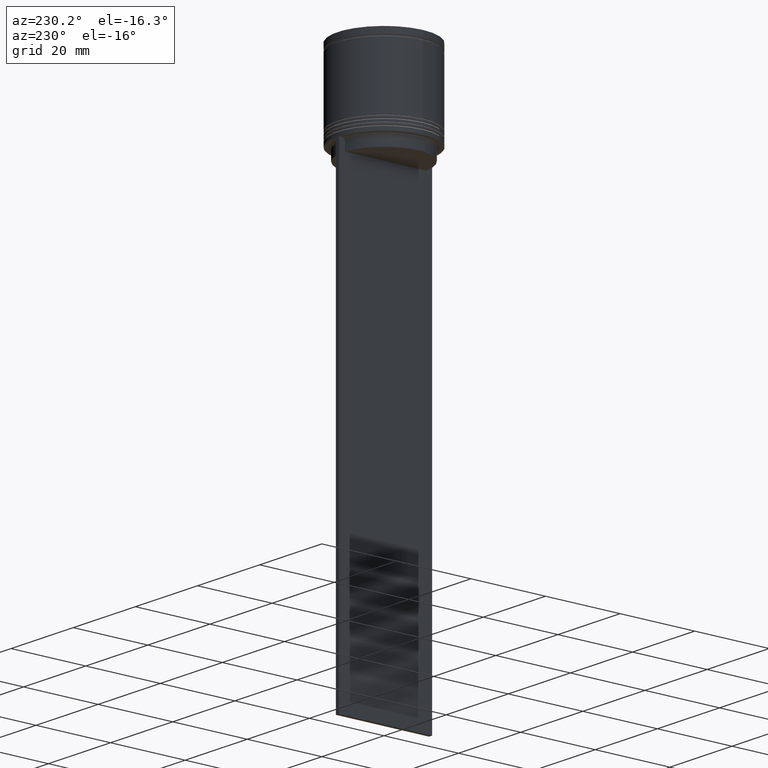
[diagram: clean part render]
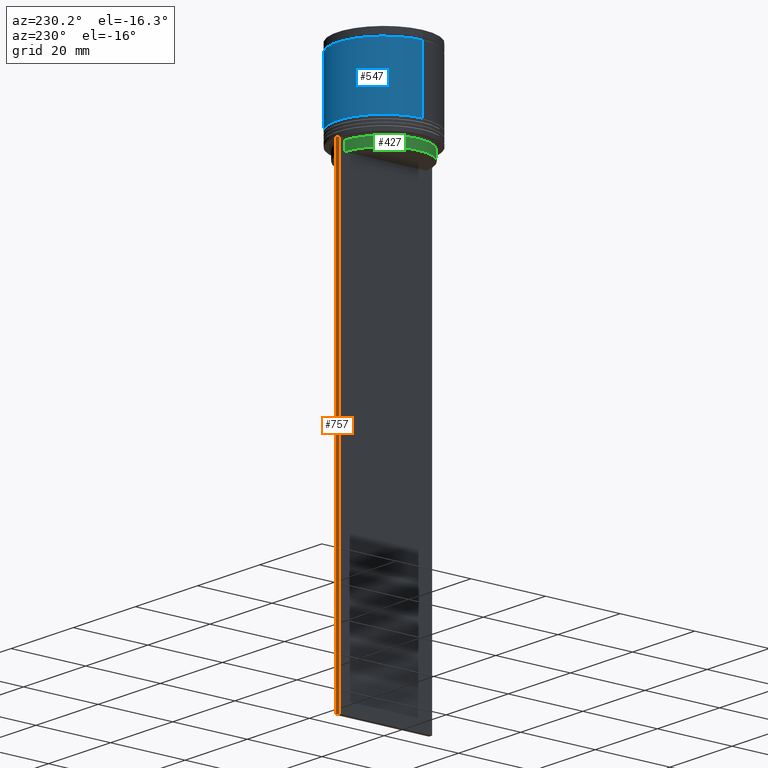
[diagram: same view with three faces highlighted in distinct colors, each labeled with its STEP entity id]
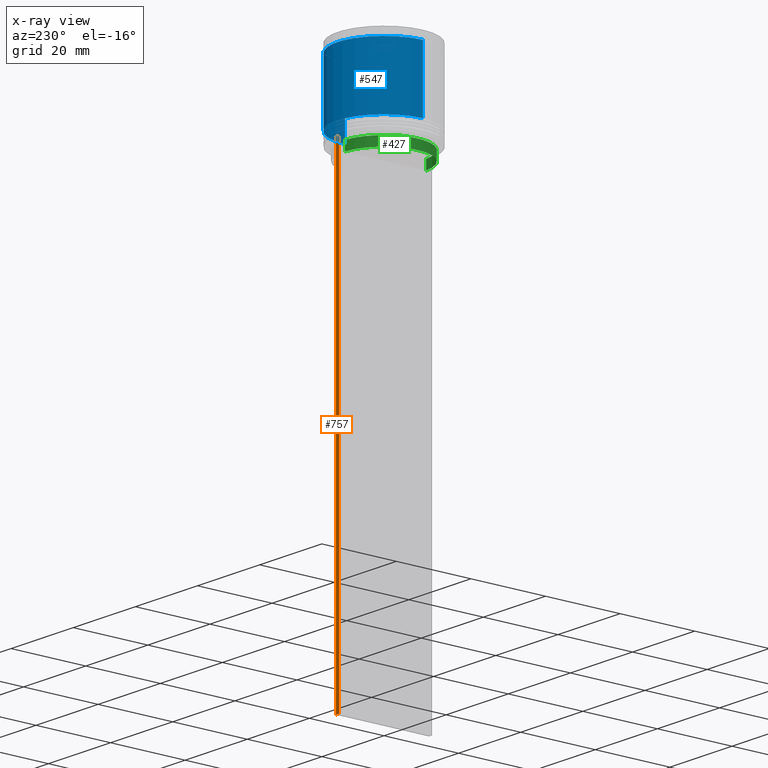
[diagram: x-ray of the same camera — body ghosted, the three highlighted faces saturated]
A machine part, auxiliary view with three faces highlighted in distinct colors.
The next image is the same camera in x-ray (body ghosted, the three faces saturated) — at least one of them is partly hidden behind the body in this view.
Their STEP definitions:

[orange] entity #757 — the highlighted planar face has unit normal (0, -1, -0).
#13 = LINE ( 'NONE', #1763, #637 ) ;
#62 = FACE_OUTER_BOUND ( 'NONE', #1303, .T. ) ;
#249 = CARTESIAN_POINT ( 'NONE',  ( -0.5000000000000000000, 12.50000000000000711, -22.50000000000000000 ) ) ;
#272 = ORIENTED_EDGE ( 'NONE', *, *, #1865, .F. ) ;
#299 = EDGE_CURVE ( 'NONE', #1597, #487, #13, .T. ) ;
#460 = VERTEX_POINT ( 'NONE', #249 ) ;
#486 = CARTESIAN_POINT ( 'NONE',  ( 0.5000000000000000000, 12.50000000000000711, -146.5000000000000000 ) ) ;
#487 = VERTEX_POINT ( 'NONE', #572 ) ;
#525 = CARTESIAN_POINT ( 'NONE',  ( -0.5000000000000000000, 12.50000000000000711, 2.519992006393609874 ) ) ;
#538 = VERTEX_POINT ( 'NONE', #2061 ) ;
#572 = CARTESIAN_POINT ( 'NONE',  ( 0.5000000000000000000, 12.50000000000000711, -146.5000000000000000 ) ) ;
#637 = VECTOR ( 'NONE', #1462, 1000.000000000000000 ) ;
#644 = VECTOR ( 'NONE', #1942, 1000.000000000000000 ) ;
#721 = PLANE ( 'NONE',  #1336 ) ;
#757 = ADVANCED_FACE ( 'NONE', ( #62 ), #721, .F. ) ;
#848 = LINE ( 'NONE', #525, #1980 ) ;
#987 = ORIENTED_EDGE ( 'NONE', *, *, #996, .T. ) ;
#990 = CARTESIAN_POINT ( 'NONE',  ( 0.5000000000000000000, 12.50000000000000711, -22.50000000000000000 ) ) ;
#996 = EDGE_CURVE ( 'NONE', #487, #538, #1365, .T. ) ;
#999 = EDGE_CURVE ( 'NONE', #460, #1597, #1298, .T. ) ;
#1024 = CARTESIAN_POINT ( 'NONE',  ( 0.5000000000000000000, 12.50000000000000711, -22.50000000000000000 ) ) ;
#1111 = DIRECTION ( 'NONE',  ( -1.000000000000000000, 0.000000000000000000, 0.000000000000000000 ) ) ;
#1298 = LINE ( 'NONE', #990, #644 ) ;
#1303 = EDGE_LOOP ( 'NONE', ( #272, #1437, #1873, #987 ) ) ;
#1336 = AXIS2_PLACEMENT_3D ( 'NONE', #1359, #1793, #1488 ) ;
#1359 = CARTESIAN_POINT ( 'NONE',  ( 0.5000000000000000000, 12.50000000000000711, 2.519992006393609874 ) ) ;
#1365 = LINE ( 'NONE', #486, #1782 ) ;
#1437 = ORIENTED_EDGE ( 'NONE', *, *, #999, .T. ) ;
#1462 = DIRECTION ( 'NONE',  ( 0.000000000000000000, 0.000000000000000000, -1.000000000000000000 ) ) ;
#1488 = DIRECTION ( 'NONE',  ( 0.000000000000000000, 0.000000000000000000, -1.000000000000000000 ) ) ;
#1597 = VERTEX_POINT ( 'NONE', #1024 ) ;
#1623 = DIRECTION ( 'NONE',  ( 0.000000000000000000, 0.000000000000000000, -1.000000000000000000 ) ) ;
#1763 = CARTESIAN_POINT ( 'NONE',  ( 0.5000000000000000000, 12.50000000000000711, 2.519992006393609874 ) ) ;
#1782 = VECTOR ( 'NONE', #1111, 1000.000000000000000 ) ;
#1793 = DIRECTION ( 'NONE',  ( 0.000000000000000000, -1.000000000000000000, -0.000000000000000000 ) ) ;
#1865 = EDGE_CURVE ( 'NONE', #460, #538, #848, .T. ) ;
#1873 = ORIENTED_EDGE ( 'NONE', *, *, #299, .T. ) ;
#1942 = DIRECTION ( 'NONE',  ( 1.000000000000000000, 0.000000000000000000, 0.000000000000000000 ) ) ;
#1980 = VECTOR ( 'NONE', #1623, 1000.000000000000000 ) ;
#2061 = CARTESIAN_POINT ( 'NONE',  ( -0.5000000000000000000, 12.50000000000000711, -146.5000000000000000 ) ) ;

[blue] entity #547 — the highlighted cylindrical surface (partial cylindrical patch) has radius 12.5 mm, axis along (-0, -0, 1).
#39 = FACE_OUTER_BOUND ( 'NONE', #1017, .T. ) ;
#73 = DIRECTION ( 'NONE',  ( 1.000000000000000000, 0.000000000000000000, 0.000000000000000000 ) ) ;
#174 = ORIENTED_EDGE ( 'NONE', *, *, #1896, .T. ) ;
#187 = AXIS2_PLACEMENT_3D ( 'NONE', #1967, #672, #73 ) ;
#214 = CARTESIAN_POINT ( 'NONE',  ( 0.000000000000000000, 0.000000000000000000, -2.199999999999994404 ) ) ;
#283 = VECTOR ( 'NONE', #1565, 1000.000000000000000 ) ;
#300 = DIRECTION ( 'NONE',  ( 1.000000000000000000, 0.000000000000000000, 0.000000000000000000 ) ) ;
#360 = CARTESIAN_POINT ( 'NONE',  ( 12.49999999999999645, 0.000000000000000000, -2.199999999999994404 ) ) ;
#415 = ORIENTED_EDGE ( 'NONE', *, *, #1470, .F. ) ;
#424 = CARTESIAN_POINT ( 'NONE',  ( -12.49999999999999645, 1.530808498934191324E-15, -2.199999999999994404 ) ) ;
#466 = CARTESIAN_POINT ( 'NONE',  ( 0.000000000000000000, 0.000000000000000000, 0.000000000000000000 ) ) ;
#531 = CARTESIAN_POINT ( 'NONE',  ( 12.50000000000000178, 0.000000000000000000, -19.00000000000000000 ) ) ;
#547 = ADVANCED_FACE ( 'NONE', ( #39 ), #664, .T. ) ;
#619 = CARTESIAN_POINT ( 'NONE',  ( -12.50000000000000000, 1.530808498934191521E-15, 0.000000000000000000 ) ) ;
#646 = CARTESIAN_POINT ( 'NONE',  ( -12.50000000000000355, 1.530808498934191916E-15, -19.00000000000000000 ) ) ;
#664 = CYLINDRICAL_SURFACE ( 'NONE', #1510, 12.50000000000000000 ) ;
#672 = DIRECTION ( 'NONE',  ( -0.000000000000000000, -0.000000000000000000, 1.000000000000000000 ) ) ;
#753 = LINE ( 'NONE', #619, #283 ) ;
#758 = EDGE_CURVE ( 'NONE', #1888, #1458, #936, .T. ) ;
#772 = VERTEX_POINT ( 'NONE', #531 ) ;
#841 = DIRECTION ( 'NONE',  ( 1.000000000000000000, 0.000000000000000000, 0.000000000000000000 ) ) ;
#936 = CIRCLE ( 'NONE', #970, 12.49999999999999645 ) ;
#970 = AXIS2_PLACEMENT_3D ( 'NONE', #214, #1976, #841 ) ;
#1017 = EDGE_LOOP ( 'NONE', ( #174, #1575, #1333, #415 ) ) ;
#1067 = CARTESIAN_POINT ( 'NONE',  ( 12.50000000000000000, 0.000000000000000000, 0.000000000000000000 ) ) ;
#1098 = DIRECTION ( 'NONE',  ( -0.000000000000000000, -0.000000000000000000, 1.000000000000000000 ) ) ;
#1229 = LINE ( 'NONE', #1067, #1747 ) ;
#1231 = VERTEX_POINT ( 'NONE', #646 ) ;
#1333 = ORIENTED_EDGE ( 'NONE', *, *, #758, .F. ) ;
#1458 = VERTEX_POINT ( 'NONE', #424 ) ;
#1470 = EDGE_CURVE ( 'NONE', #772, #1888, #1229, .T. ) ;
#1495 = EDGE_CURVE ( 'NONE', #1231, #1458, #753, .T. ) ;
#1510 = AXIS2_PLACEMENT_3D ( 'NONE', #466, #1098, #300 ) ;
#1565 = DIRECTION ( 'NONE',  ( -0.000000000000000000, -0.000000000000000000, 1.000000000000000000 ) ) ;
#1575 = ORIENTED_EDGE ( 'NONE', *, *, #1495, .T. ) ;
#1747 = VECTOR ( 'NONE', #2030, 1000.000000000000000 ) ;
#1832 = CIRCLE ( 'NONE', #187, 12.50000000000000178 ) ;
#1888 = VERTEX_POINT ( 'NONE', #360 ) ;
#1896 = EDGE_CURVE ( 'NONE', #772, #1231, #1832, .T. ) ;
#1967 = CARTESIAN_POINT ( 'NONE',  ( 0.000000000000000000, 0.000000000000000000, -19.00000000000000000 ) ) ;
#1976 = DIRECTION ( 'NONE',  ( -0.000000000000000000, -0.000000000000000000, 1.000000000000000000 ) ) ;
#2030 = DIRECTION ( 'NONE',  ( -0.000000000000000000, -0.000000000000000000, 1.000000000000000000 ) ) ;

[green] entity #427 — the highlighted cylindrical surface (partial cylindrical patch) has radius 10.9 mm, axis along (-0, -0, 1).
#100 = CARTESIAN_POINT ( 'NONE',  ( -0.5000000000000000000, -10.88852607105297032, 0.000000000000000000 ) ) ;
#113 = VERTEX_POINT ( 'NONE', #254 ) ;
#135 = CARTESIAN_POINT ( 'NONE',  ( -0.5000000000000000000, 10.88852607105297032, 0.000000000000000000 ) ) ;
#154 = DIRECTION ( 'NONE',  ( 1.000000000000000000, 0.000000000000000000, 0.000000000000000000 ) ) ;
#175 = CARTESIAN_POINT ( 'NONE',  ( -0.5000000000000000000, -10.88852607105296855, -25.50000000000000000 ) ) ;
#240 = VECTOR ( 'NONE', #577, 1000.000000000000000 ) ;
#254 = CARTESIAN_POINT ( 'NONE',  ( -0.5000000000000000000, 10.88852607105297032, -22.99999999999999645 ) ) ;
#277 = ORIENTED_EDGE ( 'NONE', *, *, #2080, .T. ) ;
#280 = AXIS2_PLACEMENT_3D ( 'NONE', #1341, #1991, #1184 ) ;
#427 = ADVANCED_FACE ( 'NONE', ( #509 ), #1908, .T. ) ;
#442 = LINE ( 'NONE', #135, #2019 ) ;
#479 = CARTESIAN_POINT ( 'NONE',  ( -0.5000000000000000000, -10.88852607105297032, -22.99999999999999645 ) ) ;
#509 = FACE_OUTER_BOUND ( 'NONE', #1822, .T. ) ;
#523 = CARTESIAN_POINT ( 'NONE',  ( 0.000000000000000000, 0.000000000000000000, -25.50000000000000000 ) ) ;
#577 = DIRECTION ( 'NONE',  ( -0.000000000000000000, -0.000000000000000000, 1.000000000000000000 ) ) ;
#740 = LINE ( 'NONE', #100, #240 ) ;
#906 = AXIS2_PLACEMENT_3D ( 'NONE', #523, #1963, #1795 ) ;
#928 = CARTESIAN_POINT ( 'NONE',  ( 0.000000000000000000, 0.000000000000000000, 0.000000000000000000 ) ) ;
#941 = EDGE_CURVE ( 'NONE', #113, #1188, #1954, .T. ) ;
#971 = ORIENTED_EDGE ( 'NONE', *, *, #1471, .T. ) ;
#978 = EDGE_CURVE ( 'NONE', #113, #1593, #442, .T. ) ;
#1053 = ORIENTED_EDGE ( 'NONE', *, *, #978, .T. ) ;
#1062 = AXIS2_PLACEMENT_3D ( 'NONE', #928, #1574, #154 ) ;
#1092 = DIRECTION ( 'NONE',  ( 0.000000000000000000, 0.000000000000000000, -1.000000000000000000 ) ) ;
#1184 = DIRECTION ( 'NONE',  ( 1.000000000000000000, 0.000000000000000000, 0.000000000000000000 ) ) ;
#1188 = VERTEX_POINT ( 'NONE', #479 ) ;
#1224 = VERTEX_POINT ( 'NONE', #175 ) ;
#1266 = ORIENTED_EDGE ( 'NONE', *, *, #941, .F. ) ;
#1341 = CARTESIAN_POINT ( 'NONE',  ( 0.000000000000000000, 0.000000000000000000, -22.99999999999999645 ) ) ;
#1471 = EDGE_CURVE ( 'NONE', #1593, #1224, #1872, .T. ) ;
#1552 = CARTESIAN_POINT ( 'NONE',  ( -0.5000000000000000000, 10.88852607105296855, -25.50000000000000000 ) ) ;
#1574 = DIRECTION ( 'NONE',  ( -0.000000000000000000, -0.000000000000000000, 1.000000000000000000 ) ) ;
#1593 = VERTEX_POINT ( 'NONE', #1552 ) ;
#1795 = DIRECTION ( 'NONE',  ( 1.000000000000000000, 0.000000000000000000, 0.000000000000000000 ) ) ;
#1822 = EDGE_LOOP ( 'NONE', ( #971, #277, #1266, #1053 ) ) ;
#1872 = CIRCLE ( 'NONE', #906, 10.90000000000000924 ) ;
#1908 = CYLINDRICAL_SURFACE ( 'NONE', #1062, 10.90000000000001101 ) ;
#1954 = CIRCLE ( 'NONE', #280, 10.90000000000001101 ) ;
#1963 = DIRECTION ( 'NONE',  ( -0.000000000000000000, -0.000000000000000000, 1.000000000000000000 ) ) ;
#1991 = DIRECTION ( 'NONE',  ( -0.000000000000000000, -0.000000000000000000, 1.000000000000000000 ) ) ;
#2019 = VECTOR ( 'NONE', #1092, 1000.000000000000000 ) ;
#2080 = EDGE_CURVE ( 'NONE', #1224, #1188, #740, .T. ) ;